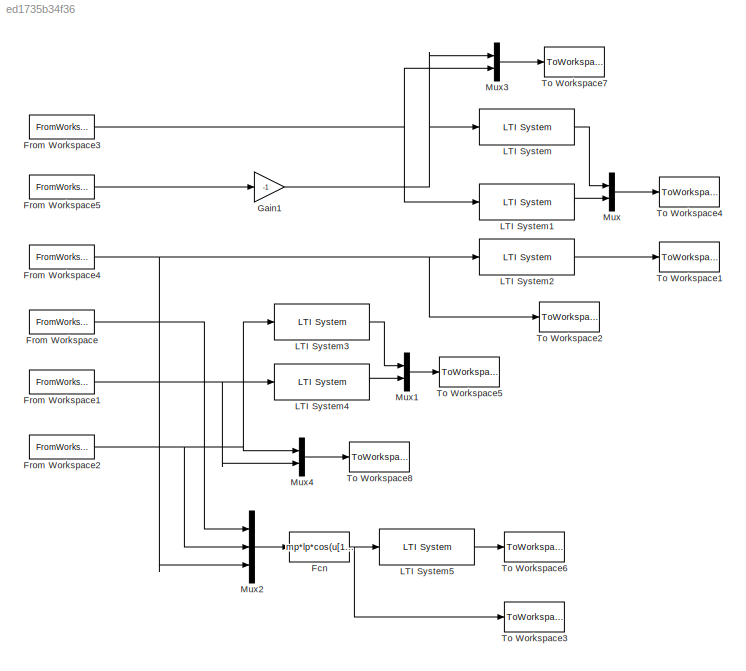
MODEL slx_ed1735b34f36
KIND model
BLOCK [Fcn] Fcn
  Expr = mp*lp*cos(u[1])*u[3] - mp*lp^2*u[2] - mp*g*lp*sin(u[1])
BLOCK [FromWorkspace] From Workspace
  SampleTime = 0
  VariableName = [t, phi]
BLOCK [FromWorkspace] From Workspace1
  SampleTime = 0
  VariableName = [t, dphi]
BLOCK [FromWorkspace] From Workspace2
  SampleTime = 0
  VariableName = [t, ddphi]
BLOCK [FromWorkspace] From Workspace3
  SampleTime = 0
  VariableName = [t, v]
BLOCK [FromWorkspace] From Workspace4
  SampleTime = 0
  VariableName = [t, ddz]
BLOCK [FromWorkspace] From Workspace5
  SampleTime = 0
  VariableName = [t, dz]
BLOCK [Gain] Gain1
  Gain = -1
BLOCK [Reference] LTI System  REF=cstblocks/LTI System
  IC = []
  Ports = [1, 1]
  SourceBlock = cstblocks/LTI System
  SourceType = LTI Block
  sys = tf(1,[Tf1 1])^3
BLOCK [Reference] LTI System1  REF=cstblocks/LTI System
  IC = []
  Ports = [1, 1]
  SourceBlock = cstblocks/LTI System
  SourceType = LTI Block
  sys = tf(1,[Tf1 1])^3
BLOCK [Reference] LTI System2  REF=cstblocks/LTI System
  IC = []
  Ports = [1, 1]
  SourceBlock = cstblocks/LTI System
  SourceType = LTI Block
  sys = tf(1,[Tf1 1])^3
BLOCK [Reference] LTI System3  REF=cstblocks/LTI System
  IC = []
  Ports = [1, 1]
  SourceBlock = cstblocks/LTI System
  SourceType = LTI Block
  sys = tf(1,[Tf2 1])^3
BLOCK [Reference] LTI System4  REF=cstblocks/LTI System
  IC = []
  Ports = [1, 1]
  SourceBlock = cstblocks/LTI System
  SourceType = LTI Block
  sys = tf(1,[Tf2 1])^3
BLOCK [Reference] LTI System5  REF=cstblocks/LTI System
  IC = []
  Ports = [1, 1]
  SourceBlock = cstblocks/LTI System
  SourceType = LTI Block
  sys = tf(1,[Tf2 1])^3
BLOCK [Mux] Mux
  DisplayOption = bar
  Inputs = 2
  Ports = [2, 1]
BLOCK [Mux] Mux1
  DisplayOption = bar
  Inputs = 2
  Ports = [2, 1]
BLOCK [Mux] Mux2
  DisplayOption = bar
  Inputs = 3
  Ports = [3, 1]
BLOCK [Mux] Mux3
  DisplayOption = bar
  Inputs = 2
  Ports = [2, 1]
BLOCK [Mux] Mux4
  DisplayOption = bar
  Inputs = 2
  Ports = [2, 1]
BLOCK [ToWorkspace] To Workspace1
  MaxDataPoints = inf
  Ports = [1]
  SampleTime = -1
  VariableName = Nf1
BLOCK [ToWorkspace] To Workspace2
  MaxDataPoints = inf
  Ports = [1]
  SampleTime = -1
  VariableName = N1
BLOCK [ToWorkspace] To Workspace3
  MaxDataPoints = inf
  Ports = [1]
  SampleTime = -1
  VariableName = N2
BLOCK [ToWorkspace] To Workspace4
  MaxDataPoints = inf
  Ports = [1]
  SampleTime = -1
  VariableName = Mf1
BLOCK [ToWorkspace] To Workspace5
  MaxDataPoints = inf
  Ports = [1]
  SampleTime = -1
  VariableName = Mf2
BLOCK [ToWorkspace] To Workspace6
  MaxDataPoints = inf
  Ports = [1]
  SampleTime = -1
  VariableName = Nf2
BLOCK [ToWorkspace] To Workspace7
  MaxDataPoints = inf
  Ports = [1]
  SampleTime = -1
  VariableName = M1
BLOCK [ToWorkspace] To Workspace8
  MaxDataPoints = inf
  Ports = [1]
  SampleTime = -1
  VariableName = M2
NET Fcn:1 -> LTI System5:1, To Workspace3:1
NET From Workspace1:1 -> LTI System4:1, Mux4:2
NET From Workspace2:1 -> LTI System3:1, Mux2:2, Mux4:1
NET From Workspace3:1 -> LTI System1:1, Mux3:2
NET From Workspace4:1 -> LTI System2:1, Mux2:3, To Workspace2:1
LINE From Workspace5:1 -> Gain1:1
LINE From Workspace:1 -> Mux2:1
NET Gain1:1 -> LTI System:1, Mux3:1
LINE LTI System1:1 -> Mux:2
LINE LTI System2:1 -> To Workspace1:1
LINE LTI System3:1 -> Mux1:1
LINE LTI System4:1 -> Mux1:2
LINE LTI System5:1 -> To Workspace6:1
LINE LTI System:1 -> Mux:1
LINE Mux1:1 -> To Workspace5:1
LINE Mux2:1 -> Fcn:1
LINE Mux3:1 -> To Workspace7:1
LINE Mux4:1 -> To Workspace8:1
LINE Mux:1 -> To Workspace4:1
note: NET lines group one-source signal fan-out (src -> all destinations, sorted); 1:1 wires keep LINE
